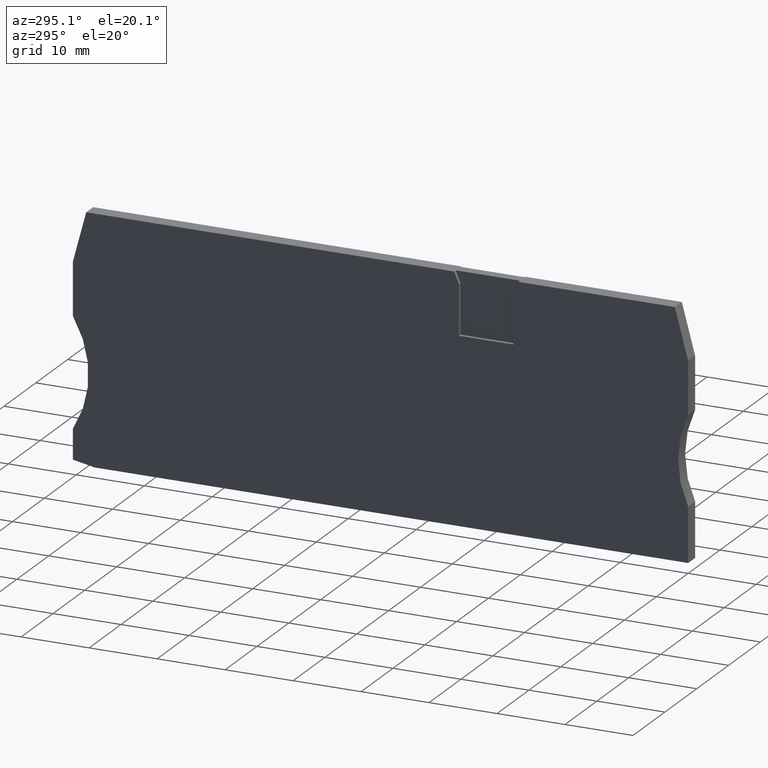
[diagram: clean part render]
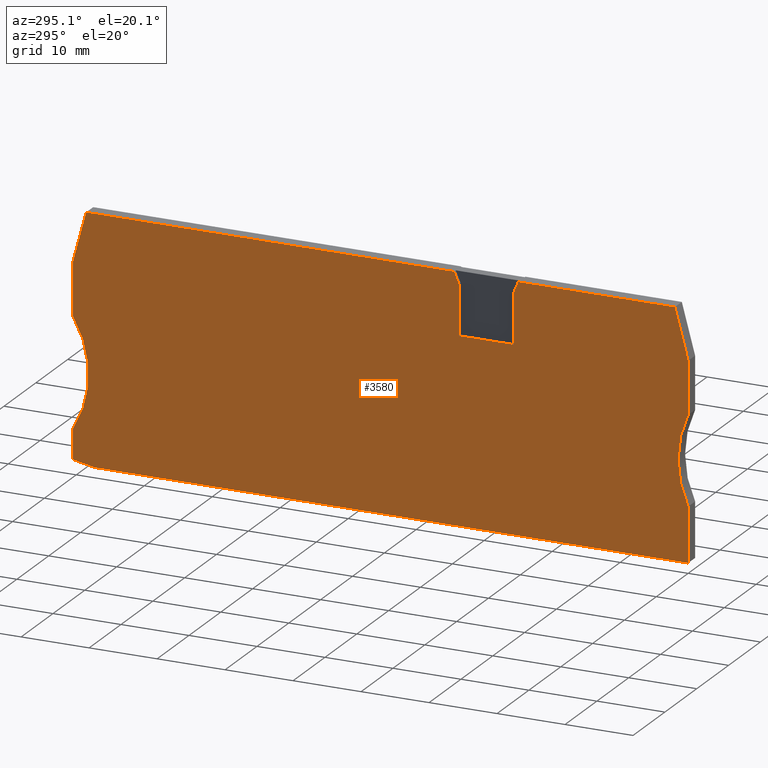
[diagram: same view with one face highlighted and labeled with its STEP entity id]
A machine part, auxiliary view. The second image highlights one B-rep face of the part: STEP entity #3580.
In plain terms, the highlighted planar face has unit normal (-1, 0, 0).
Its self-contained STEP definition (entity closure, byte-faithful):
#1590=CARTESIAN_POINT('',(-32.767832778325,-17.1999999999999,53.67));
#1600=VERTEX_POINT('',#1590);
#1680=CARTESIAN_POINT('',(-32.767832778325,-30.2000000000029,53.67));
#1690=VERTEX_POINT('',#1680);
#1720=CARTESIAN_POINT('',(-46.2863386129204,-23.7000000000014,53.67));
#1730=DIRECTION('',(0.,0.,1.));
#1740=DIRECTION('',(1.,0.,0.));
#1750=AXIS2_PLACEMENT_3D('',#1720,#1730,#1740);
#1760=CIRCLE('',#1750,15.0000000000002);
#1770=EDGE_CURVE('',#1690,#1600,#1760,.T.);
#2080=CARTESIAN_POINT('',(-7.06783277832451,-3.90000000000332,53.67));
#2090=VERTEX_POINT('',#2080);
#2120=CARTESIAN_POINT('',(-7.0678327783245,-22.363129,53.67));
#2130=DIRECTION('',(0.,-1.,0.));
#2140=VECTOR('',#2130,1.);
#2150=LINE('',#2120,#2140);
#2160=CARTESIAN_POINT('',(-7.0678327783245,-11.2000000000016,53.67));
#2170=VERTEX_POINT('',#2160);
#2180=EDGE_CURVE('',#2090,#2170,#2150,.T.);
#2360=CARTESIAN_POINT('',(1.98753027032264,-18.8101307716224,53.67));
#2370=DIRECTION('',(0.,0.,-1.));
#2380=DIRECTION('',(-1.,0.,0.));
#2390=AXIS2_PLACEMENT_3D('',#2360,#2370,#2380);
#2400=PLANE('',#2390);
#2410=CARTESIAN_POINT('',(31.631009,-38.2000000000014,53.67));
#2420=DIRECTION('',(1.,0.,0.));
#2430=VECTOR('',#2420,1.);
#2440=LINE('',#2410,#2430);
#2450=CARTESIAN_POINT('',(-32.767832778325,-38.2000000000014,53.67));
#2460=VERTEX_POINT('',#2450);
#2470=CARTESIAN_POINT('',(54.5099449994476,-38.2000000000014,53.67));
#2480=VERTEX_POINT('',#2470);
#2490=EDGE_CURVE('',#2460,#2480,#2440,.T.);
#2500=ORIENTED_EDGE('',*,*,#2490,.F.);
#2510=CARTESIAN_POINT('',(31.631009,-42.5810728509603,53.67));
#2520=DIRECTION('',(-0.98215519189214,-0.188072270787892,0.));
#2530=VECTOR('',#2520,1.);
#2540=LINE('',#2510,#2530);
#2550=CARTESIAN_POINT('',(57.7321672216756,-37.5829787234045,53.67));
#2560=VERTEX_POINT('',#2550);
#2570=EDGE_CURVE('',#2560,#2480,#2540,.T.);
#2580=ORIENTED_EDGE('',*,*,#2570,.T.);
#2590=CARTESIAN_POINT('',(57.7321672216756,-22.363129,53.67));
#2600=DIRECTION('',(0.,-1.,0.));
#2610=VECTOR('',#2600,1.);
#2620=LINE('',#2590,#2610);
#2630=CARTESIAN_POINT('',(57.7321672216756,-33.1999999999997,53.67));
#2640=VERTEX_POINT('',#2630);
#2650=EDGE_CURVE('',#2640,#2560,#2620,.T.);
#2660=ORIENTED_EDGE('',*,*,#2650,.T.);
#2670=CARTESIAN_POINT('',(70.4207447621217,-25.2000000000011,53.67));
#2680=DIRECTION('',(0.,0.,1.));
#2690=DIRECTION('',(1.,0.,0.));
#2700=AXIS2_PLACEMENT_3D('',#2670,#2680,#2690);
#2710=CIRCLE('',#2700,14.9999999999964);
#2720=CARTESIAN_POINT('',(57.7321672216756,-17.2000000000024,53.67));
#2730=VERTEX_POINT('',#2720);
#2740=EDGE_CURVE('',#2730,#2640,#2710,.T.);
#2750=ORIENTED_EDGE('',*,*,#2740,.T.);
#2760=CARTESIAN_POINT('',(57.7321672216756,-22.363129,53.67));
#2770=DIRECTION('',(0.,1.,0.));
#2780=VECTOR('',#2770,1.);
#2790=LINE('',#2760,#2780);
#2800=CARTESIAN_POINT('',(57.7321672216756,-9.51554445660332,53.67));
#2810=VERTEX_POINT('',#2800);
#2820=EDGE_CURVE('',#2730,#2810,#2790,.T.);
#2830=ORIENTED_EDGE('',*,*,#2820,.F.);
#2840=CARTESIAN_POINT('',(61.1746671247789,-22.363129,53.67));
#2850=DIRECTION('',(0.258819045103196,-0.965925826288887,0.));
#2860=VECTOR('',#2850,1.);
#2870=LINE('',#2840,#2860);
#2880=CARTESIAN_POINT('',(55.771972992329,-2.19999999999897,53.67));
#2890=VERTEX_POINT('',#2880);
#2900=EDGE_CURVE('',#2890,#2810,#2870,.T.);
#2910=ORIENTED_EDGE('',*,*,#2900,.T.);
#2920=CARTESIAN_POINT('',(31.631009,-2.19999999999897,53.67));
#2930=DIRECTION('',(-1.,0.,0.));
#2940=VECTOR('',#2930,1.);
#2950=LINE('',#2920,#2940);
#2960=CARTESIAN_POINT('',(1.65066694098248,-2.19999999999897,53.67));
#2970=VERTEX_POINT('',#2960);
#2980=EDGE_CURVE('',#2890,#2970,#2950,.T.);
#2990=ORIENTED_EDGE('',*,*,#2980,.F.);
#3000=CARTESIAN_POINT('',(-6.8712168983296,-22.363129,53.67));
#3010=DIRECTION('',(0.389303997098191,0.92110933001646,0.));
#3020=VECTOR('',#3010,1.);
#3030=LINE('',#3000,#3020);
#3040=CARTESIAN_POINT('',(0.932167221675279,-3.90000000000325,53.67));
#3050=VERTEX_POINT('',#3040);
#3060=EDGE_CURVE('',#3050,#2970,#3030,.T.);
#3070=ORIENTED_EDGE('',*,*,#3060,.T.);
#3080=CARTESIAN_POINT('',(0.932167221675279,-22.363129,53.67));
#3090=DIRECTION('',(0.,1.,0.));
#3100=VECTOR('',#3090,1.);
#3110=LINE('',#3080,#3100);
#3120=CARTESIAN_POINT('',(0.932167221675279,-11.2000000000016,53.67));
#3130=VERTEX_POINT('',#3120);
#3140=EDGE_CURVE('',#3130,#3050,#3110,.T.);
#3150=ORIENTED_EDGE('',*,*,#3140,.T.);
#3160=CARTESIAN_POINT('',(31.631009,-11.2000000000016,53.67));
#3170=DIRECTION('',(1.,0.,0.));
#3180=VECTOR('',#3170,1.);
#3190=LINE('',#3160,#3180);
#3200=EDGE_CURVE('',#2170,#3130,#3190,.T.);
#3210=ORIENTED_EDGE('',*,*,#3200,.T.);
#3220=ORIENTED_EDGE('',*,*,#2180,.T.);
#3230=CARTESIAN_POINT('',(0.735551341396391,-22.363129,53.67));
#3240=DIRECTION('',(0.389303997086196,-0.92110933002153,0.));
#3250=VECTOR('',#3240,1.);
#3260=LINE('',#3230,#3250);
#3270=CARTESIAN_POINT('',(-7.78633249760621,-2.19999999999897,53.67));
#3280=VERTEX_POINT('',#3270);
#3290=EDGE_CURVE('',#3280,#2090,#3260,.T.);
#3300=ORIENTED_EDGE('',*,*,#3290,.T.);
#3310=CARTESIAN_POINT('',(-30.8076385489786,-2.19999999999896,53.67));
#3320=VERTEX_POINT('',#3310);
#3330=EDGE_CURVE('',#3280,#3320,#2950,.T.);
#3340=ORIENTED_EDGE('',*,*,#3330,.F.);
#3350=CARTESIAN_POINT('',(-36.2103326814236,-22.363129,53.67));
#3360=DIRECTION('',(0.258819045102977,0.965925826288946,0.));
#3370=VECTOR('',#3360,1.);
#3380=LINE('',#3350,#3370);
#3390=CARTESIAN_POINT('',(-32.767832778325,-9.51554445660954,53.67));
#3400=VERTEX_POINT('',#3390);
#3410=EDGE_CURVE('',#3400,#3320,#3380,.T.);
#3420=ORIENTED_EDGE('',*,*,#3410,.T.);
#3430=CARTESIAN_POINT('',(-32.767832778325,-22.363129,53.67));
#3440=DIRECTION('',(0.,-1.,0.));
#3450=VECTOR('',#3440,1.);
#3460=LINE('',#3430,#3450);
#3470=EDGE_CURVE('',#3400,#1600,#3460,.T.);
#3480=ORIENTED_EDGE('',*,*,#3470,.F.);
#3490=ORIENTED_EDGE('',*,*,#1770,.T.);
#3500=CARTESIAN_POINT('',(-32.767832778325,-22.363129,53.67));
#3510=DIRECTION('',(0.,-1.,0.));
#3520=VECTOR('',#3510,1.);
#3530=LINE('',#3500,#3520);
#3540=EDGE_CURVE('',#1690,#2460,#3530,.T.);
#3550=ORIENTED_EDGE('',*,*,#3540,.F.);
#3560=EDGE_LOOP('',(#3550,#3490,#3480,#3420,#3340,#3300,#3220,#3210,
#3150,#3070,#2990,#2910,#2830,#2750,#2660,#2580,#2500));
#3570=FACE_OUTER_BOUND('',#3560,.T.);
#3580=ADVANCED_FACE('',(#3570),#2400,.T.);